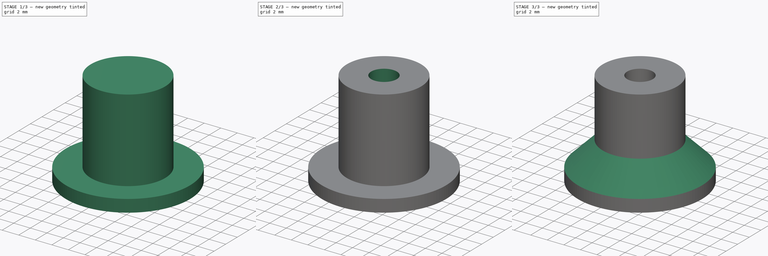
[diagram: build sequence overview — one tinted view per stage of 3, left to right]
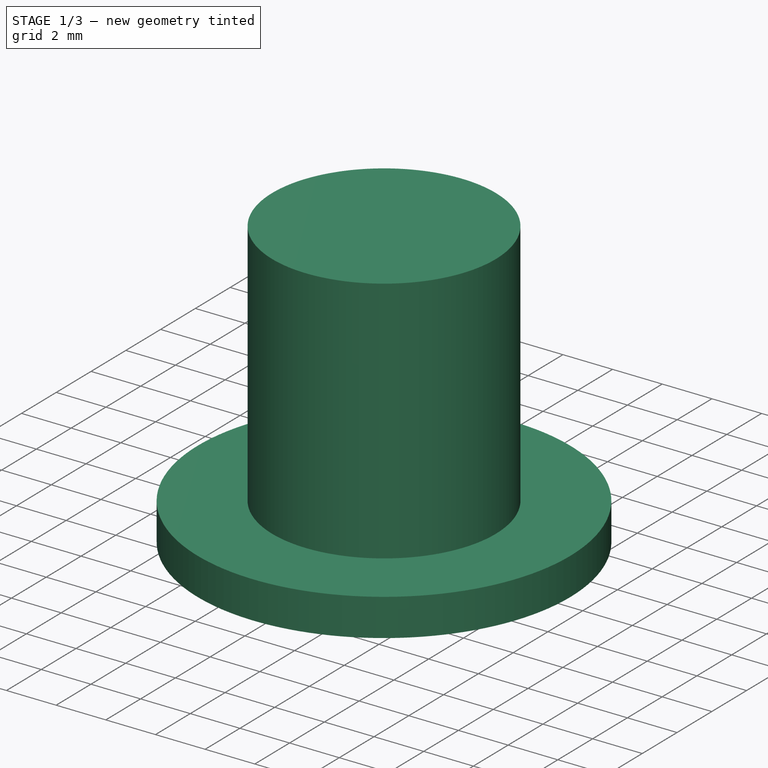
[diagram: stage 1 of 3 — iso view after this stage's code; geometry added in this stage tinted green]
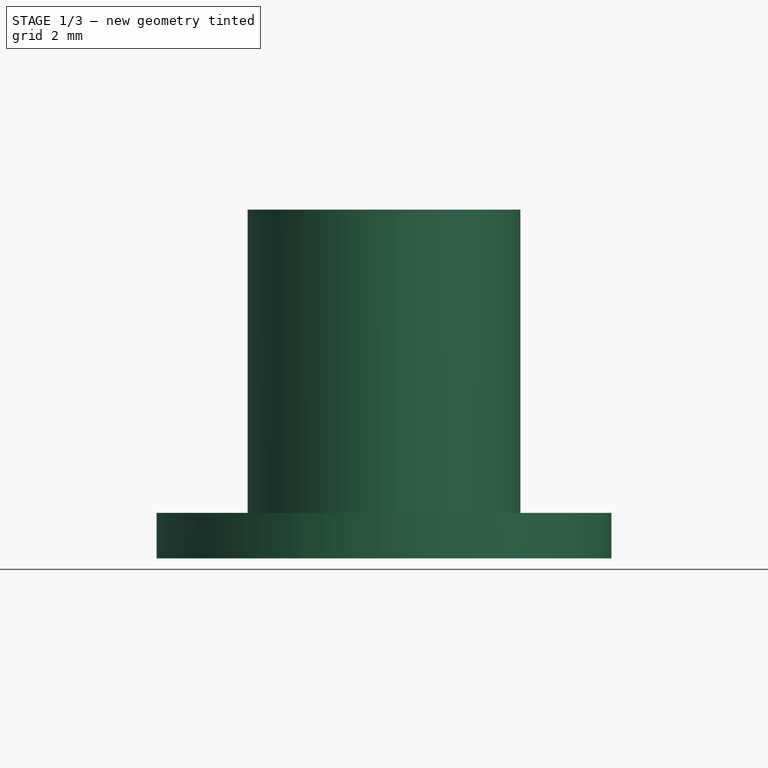
[diagram: stage 1 of 3 — front view after this stage's code; geometry added in this stage tinted green]
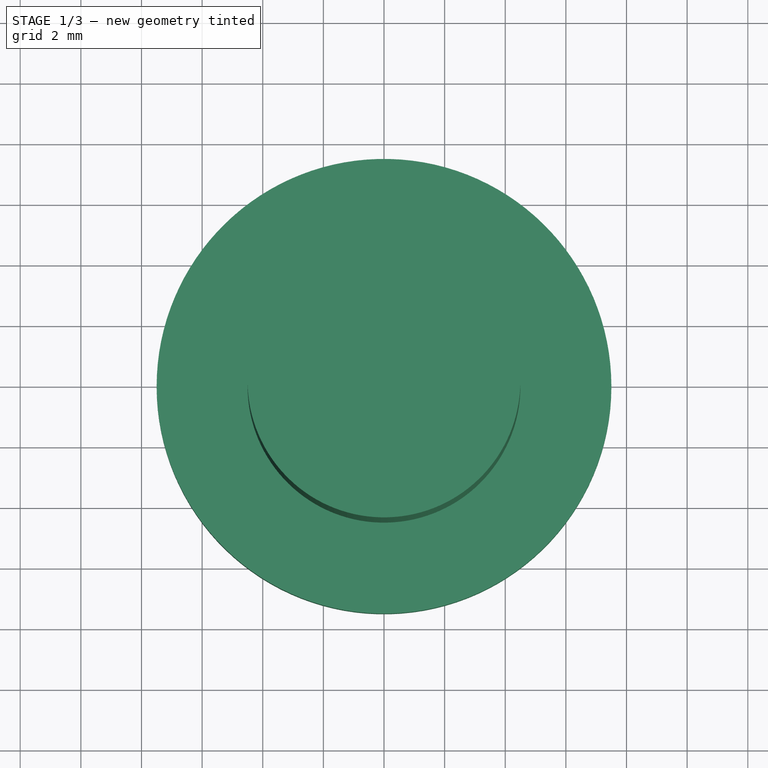
[diagram: stage 1 of 3 — top view after this stage's code; geometry added in this stage tinted green]
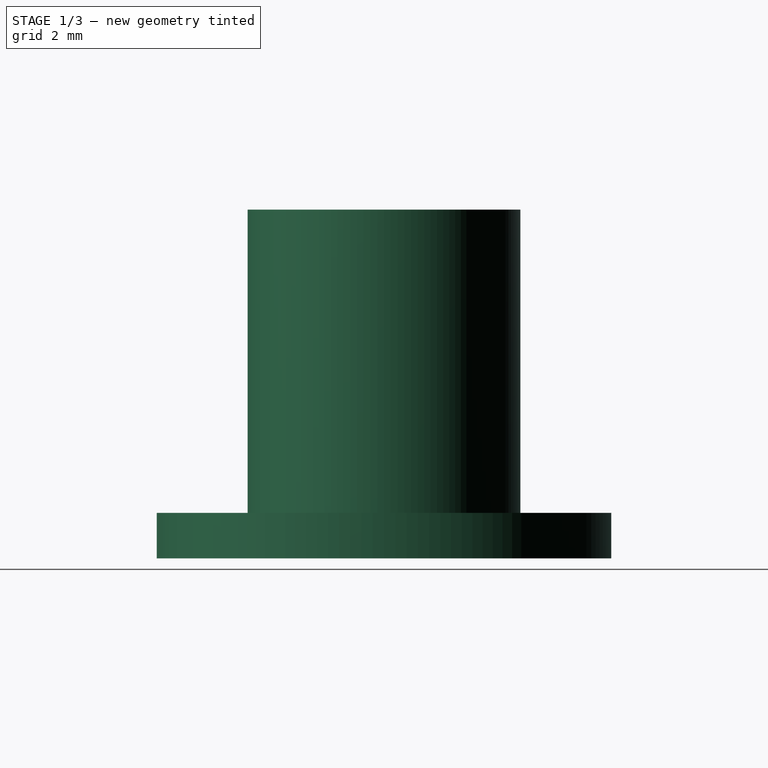
[diagram: stage 1 of 3 — right view after this stage's code; geometry added in this stage tinted green]
FCSTD DOCUMENT  (FreeCAD 0.16R6704 (Git))
Label: PCB Stand-off - v2
License: All rights reserved
LicenseURL: http://en.wikipedia.org/wiki/All_rights_reserved
objects: Sketcher::SketchObject×6, PartDesign::Pad×3, PartDesign::Pocket×3, PartDesign::Chamfer×2
note: 20 computed .brp shape members not serialized (recipe doc carries the construction recipe); baked Part::Feature solids carry a one-line shape summary decoded from their .brp

FEATURE [Sketcher::SketchObject] Sketch
  sketch-geometry (1):
    g0: Circle CenterX=0 CenterY=0 CenterZ=0 NormalX=0 NormalY=0 NormalZ=1 Radius=7.5
  constraints (2):
    c: Coincident(g-1,g0)
    c: Radius(g0) = 7.5
FEATURE [PartDesign::Pad] Pad
  Length = 1.5
  Length2 = 100
  Sketch = -> Sketch
  Type = 0
FEATURE [Sketcher::SketchObject] Sketch001
  Placement = pos=(0,0,1.5) rot=(0,0,1;0rad)
  Support = -> Pad [Face3]
  sketch-geometry (1):
    g0: Circle CenterX=0 CenterY=0 CenterZ=0 NormalX=0 NormalY=0 NormalZ=1 Radius=4.5
  constraints (2):
    c: Coincident(g0,g-1)
    c: Radius(g0) = 4.5
FEATURE [PartDesign::Pad] Pad001
  Length = 10
  Length2 = 100
  Sketch = -> Sketch001
  Type = 0
FEATURE [Sketcher::SketchObject] Sketch002
  Placement = pos=(0,0,0) rot=(1,0,0;3.14159rad)
  Support = -> Pad001 [Face2]
  sketch-geometry (7):
    g0: LineSegment StartX=2.525 StartY=1.45781 StartZ=0 EndX=0 EndY=2.91562 EndZ=0
    g1: LineSegment StartX=0 StartY=2.91562 StartZ=0 EndX=-2.525 EndY=1.45781 EndZ=0
    g2: LineSegment StartX=-2.525 StartY=1.45781 StartZ=0 EndX=-2.525 EndY=-1.45781 EndZ=0
    g3: LineSegment StartX=-2.525 StartY=-1.45781 StartZ=0 EndX=0 EndY=-2.91562 EndZ=0
    g4: LineSegment StartX=0 StartY=-2.91562 StartZ=0 EndX=2.525 EndY=-1.45781 EndZ=0
    g5: LineSegment StartX=2.525 StartY=-1.45781 StartZ=0 EndX=2.525 EndY=1.45781 EndZ=0
    g6: Circle [constr] CenterX=0 CenterY=0 CenterZ=0 NormalX=0 NormalY=0 NormalZ=1 Radius=2.91562
  constraints (16):
    c: Coincident(g0,g1)
    c: Coincident(g1,g2)
    c: Coincident(g2,g3)
    c: Coincident(g3,g4)
    c: Coincident(g4,g5)
    c: Coincident(g5,g0)
    c: Equal(g0, g1-g5) x5
    c: PointOnObject(g0,g6)
    c: PointOnObject(g1,g6)
    c: PointOnObject(g2,g6)
    c: PointOnObject(g3,g6)
    c: PointOnObject(g4,g6)
    c: PointOnObject(g5,g6)
    c: Distance(g1,g3) = 5.05
    c: Coincident(g6,g-1)
    c: Vertical(g5)
FEATURE [PartDesign::Pocket] Pocket
  Length = 6
  Sketch = -> Sketch002
  Type = 0
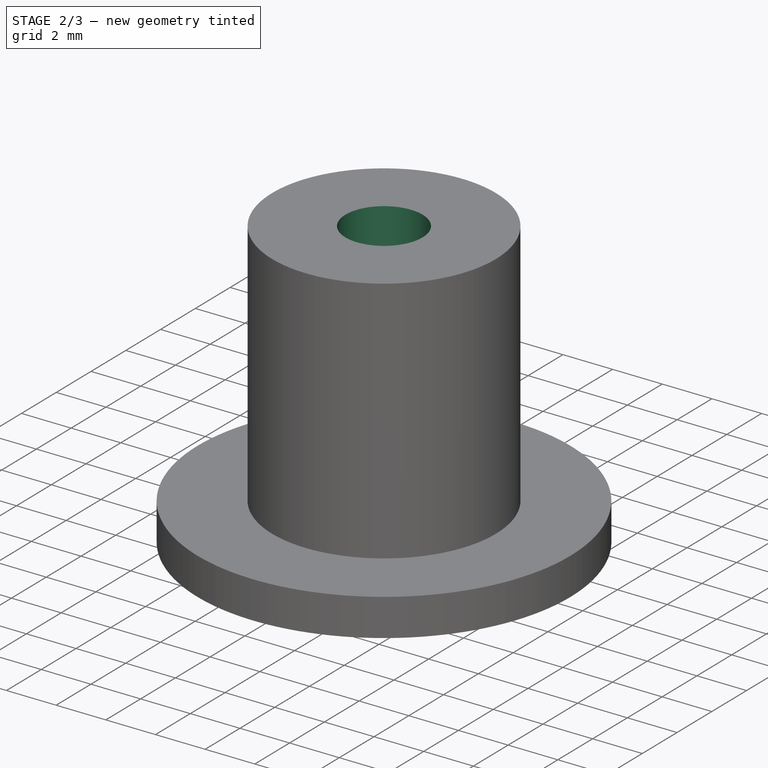
[diagram: stage 2 of 3 — iso view after this stage's code; geometry added in this stage tinted green]
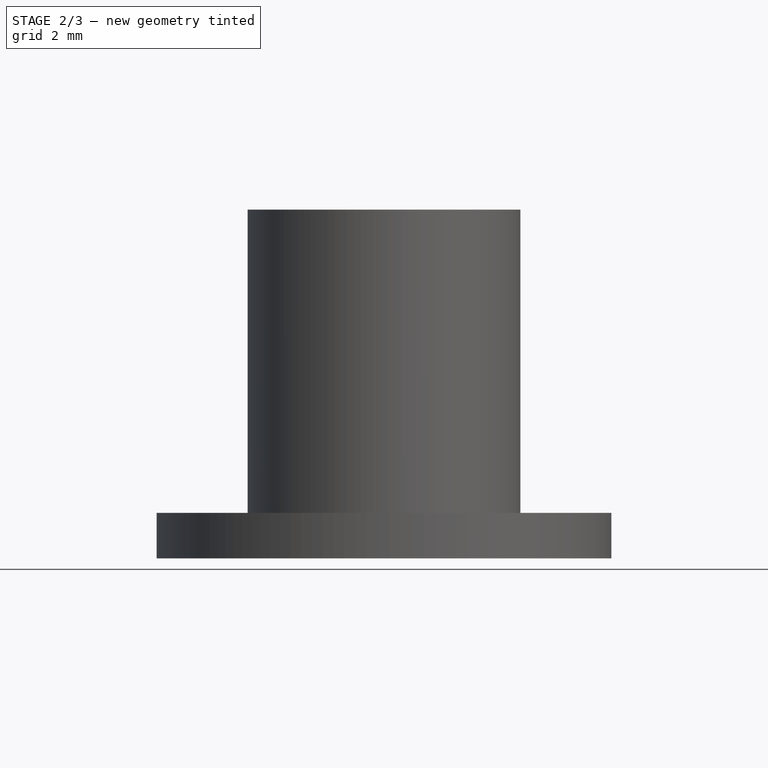
[diagram: stage 2 of 3 — front view after this stage's code; geometry added in this stage tinted green]
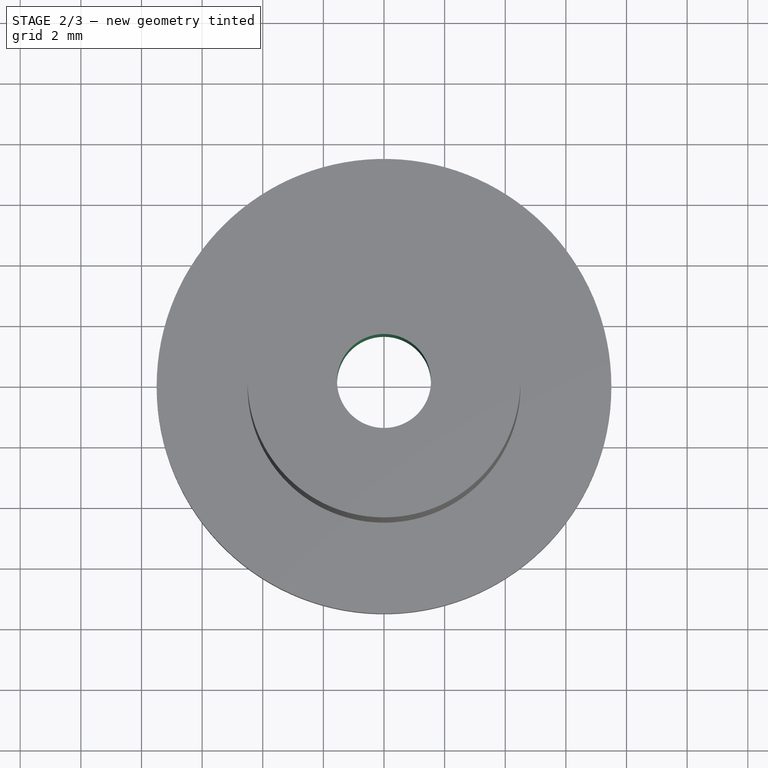
[diagram: stage 2 of 3 — top view after this stage's code; geometry added in this stage tinted green]
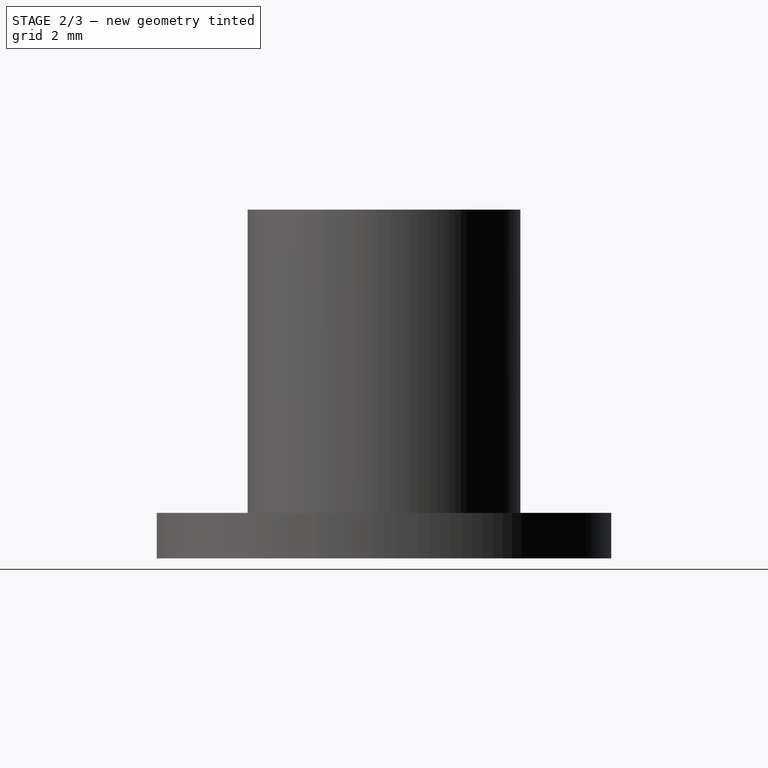
[diagram: stage 2 of 3 — right view after this stage's code; geometry added in this stage tinted green]
FEATURE [Sketcher::SketchObject] Sketch003
  Placement = pos=(0,0,11.5) rot=(0,0,1;0rad)
  Support = -> Pocket [Face12]
  sketch-geometry (1):
    g0: Circle CenterX=0 CenterY=0 CenterZ=0 NormalX=0 NormalY=0 NormalZ=1 Radius=1.55
  constraints (2):
    c: Radius(g0) = 1.55
    c: Coincident(g0,g-1)
FEATURE [PartDesign::Pocket] Pocket001
  Length = 5
  Sketch = -> Sketch003
  Type = 1
FEATURE [Sketcher::SketchObject] Sketch004
  Placement = pos=(0,0,0) rot=(1,0,0;3.14159rad)
  Support = -> Pocket001 [Face2]
  sketch-geometry (7):
    g0: LineSegment StartX=3.025 StartY=1.74648 StartZ=0 EndX=0 EndY=3.49297 EndZ=0
    g1: LineSegment StartX=0 StartY=3.49297 StartZ=0 EndX=-3.025 EndY=1.74648 EndZ=0
    g2: LineSegment StartX=-3.025 StartY=1.74648 StartZ=0 EndX=-3.025 EndY=-1.74648 EndZ=0
    g3: LineSegment StartX=-3.025 StartY=-1.74648 StartZ=0 EndX=0 EndY=-3.49297 EndZ=0
    g4: LineSegment StartX=0 StartY=-3.49297 StartZ=0 EndX=3.025 EndY=-1.74648 EndZ=0
    g5: LineSegment StartX=3.025 StartY=-1.74648 StartZ=0 EndX=3.025 EndY=1.74648 EndZ=0
    g6: Circle [constr] CenterX=0 CenterY=0 CenterZ=0 NormalX=0 NormalY=0 NormalZ=1 Radius=3.49297
  constraints (16):
    c: Coincident(g0,g1)
    c: Coincident(g1,g2)
    c: Coincident(g2,g3)
    c: Coincident(g3,g4)
    c: Coincident(g4,g5)
    c: Coincident(g5,g0)
    c: Equal(g0, g1-g5) x5
    c: PointOnObject(g0,g6)
    c: PointOnObject(g1,g6)
    c: PointOnObject(g2,g6)
    c: PointOnObject(g3,g6)
    c: PointOnObject(g4,g6)
    c: PointOnObject(g5,g6)
    c: Coincident(g6,g-1)
    c: Distance(g2,g4) = 6.05
    c: Vertical(g5)
FEATURE [PartDesign::Pocket] Pocket002
  Length = 4
  Sketch = -> Sketch004
  Type = 0
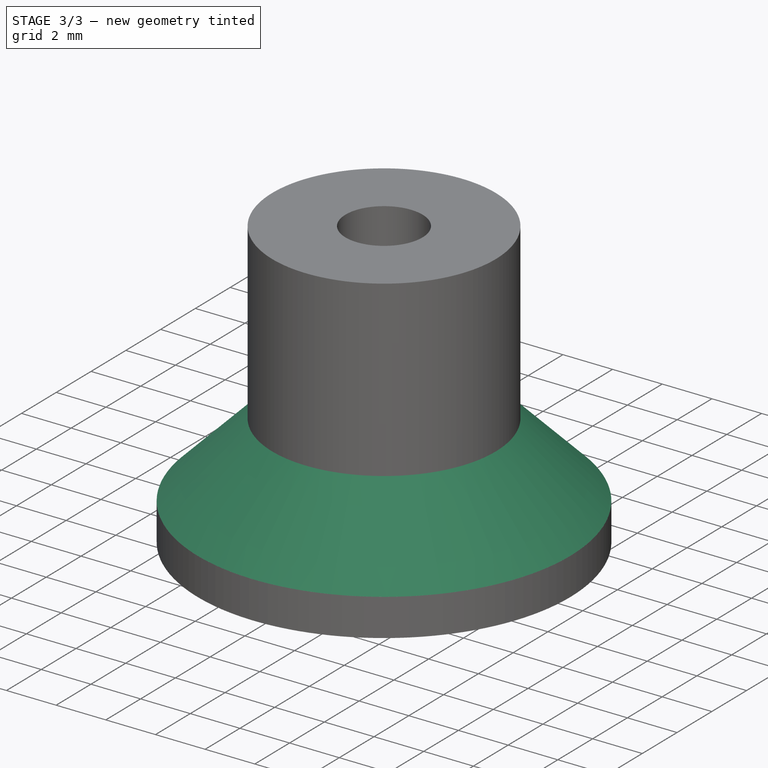
[diagram: stage 3 of 3 — iso view after this stage's code; geometry added in this stage tinted green]
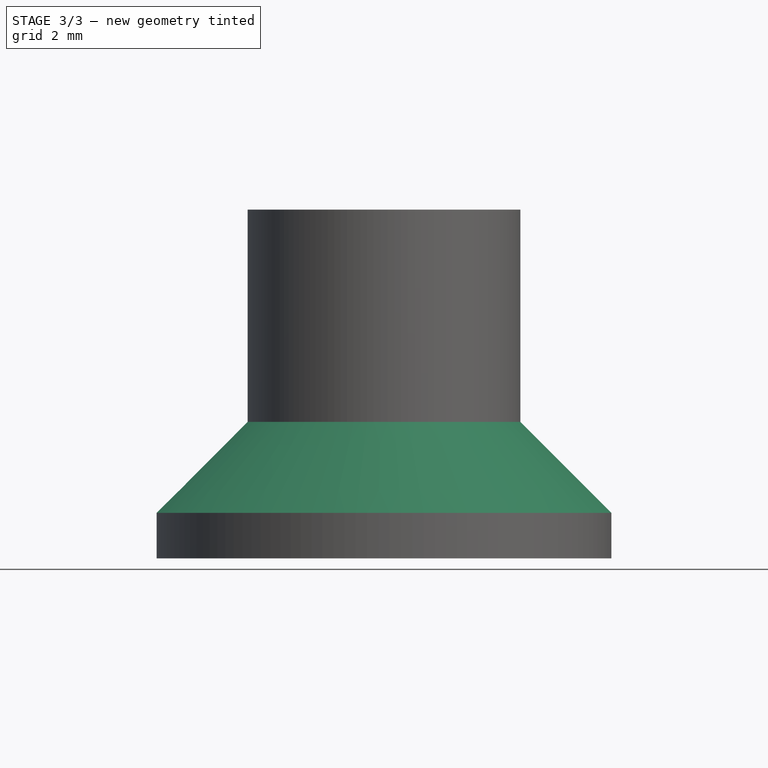
[diagram: stage 3 of 3 — front view after this stage's code; geometry added in this stage tinted green]
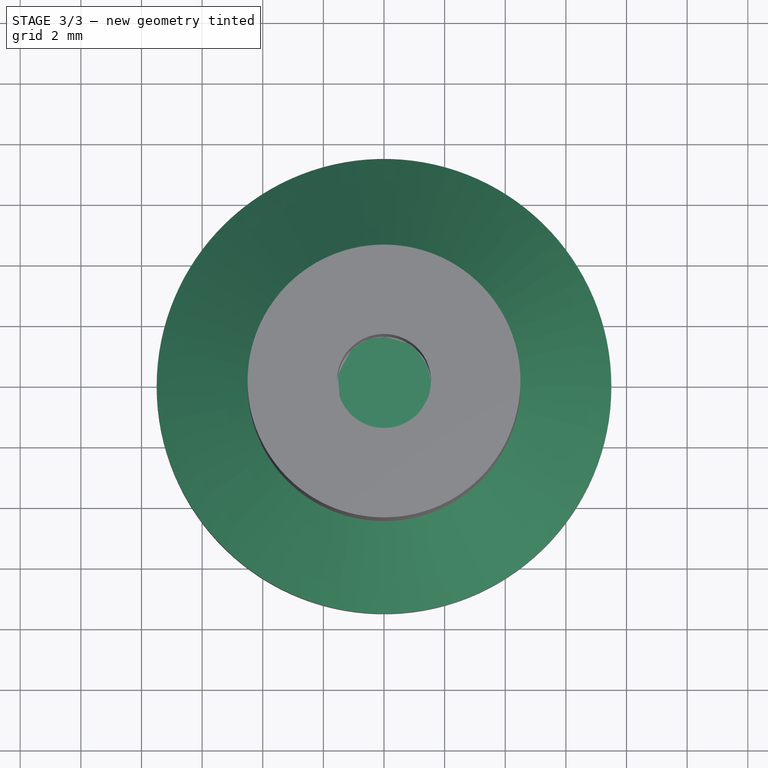
[diagram: stage 3 of 3 — top view after this stage's code; geometry added in this stage tinted green]
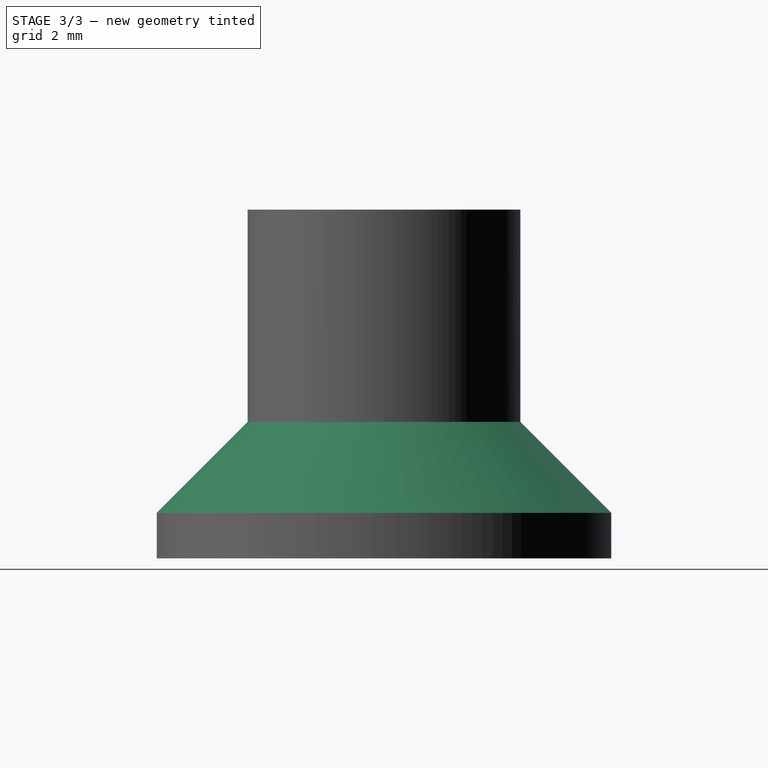
[diagram: stage 3 of 3 — right view after this stage's code; geometry added in this stage tinted green]
FEATURE [PartDesign::Chamfer] Chamfer  label="PCB Stand-off - v2"
  Base = -> Pocket002 [Edge10]
  Size = 2.999
FEATURE [Sketcher::SketchObject] Sketch005
  Placement = pos=(0,0,6) rot=(1,0,0;3.14159rad)
  Support = -> Chamfer [Face15]
  sketch-geometry (1):
    g0: Circle CenterX=0 CenterY=0 CenterZ=0 NormalX=0 NormalY=0 NormalZ=1 Radius=1.55
  constraints (2):
    c: Coincident(g0,g-1)
    c: Radius(g0) = 1.55
FEATURE [PartDesign::Pad] Pad002  label="Printable"
  Length = 0.3
  Length2 = 100
  Reversed = true
  Sketch = -> Sketch005
  Type = 0
FEATURE [PartDesign::Chamfer] Chamfer001  label="Printable001"
  Base = -> Pad002 [Edge25,Edge27,Edge23,Edge17,Edge19,Edge21]
  Size = 0.495
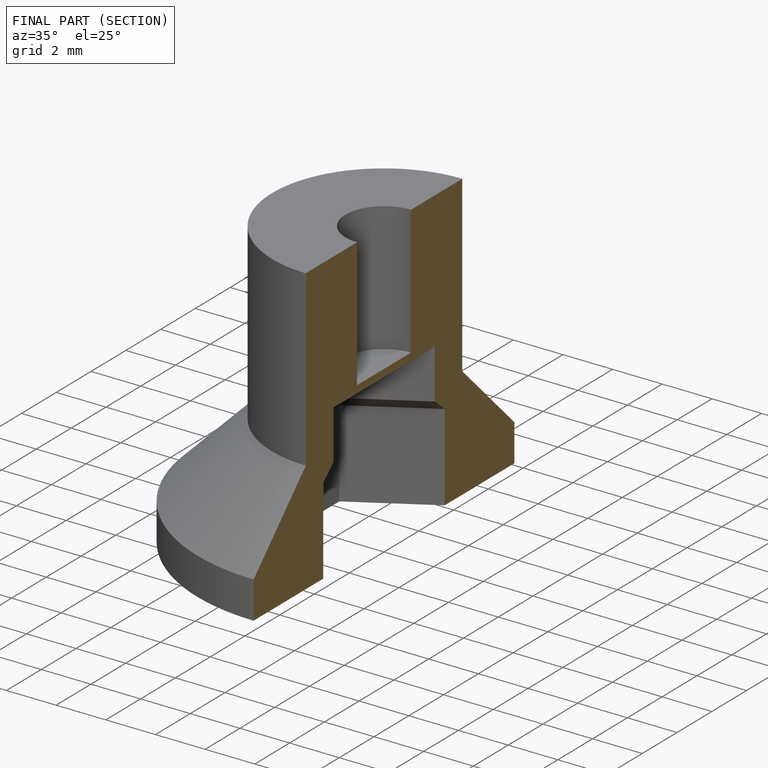
[diagram: finished part — half-section view (interior)]
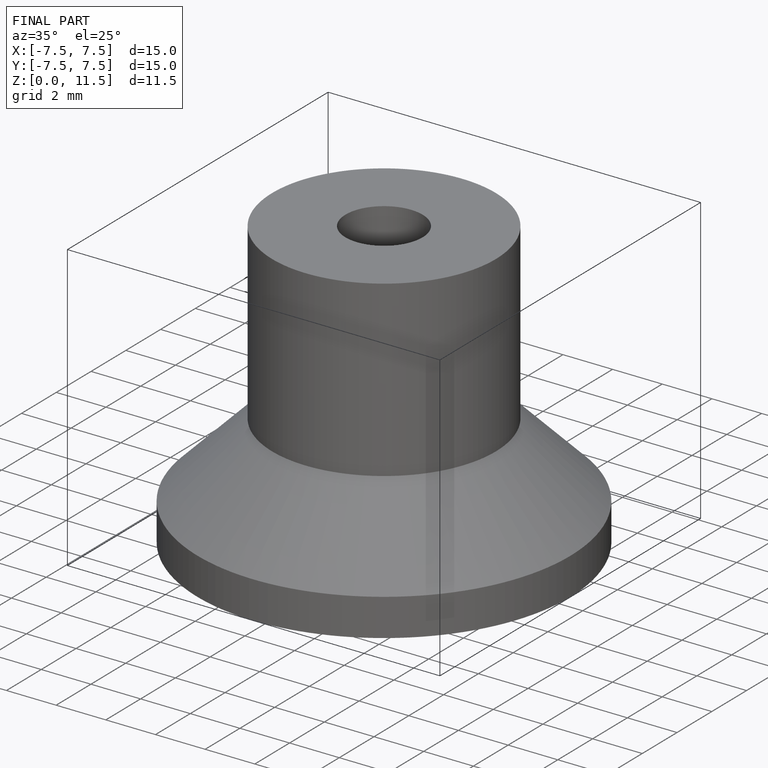
[diagram: finished part — iso view with bounding-box wireframe]
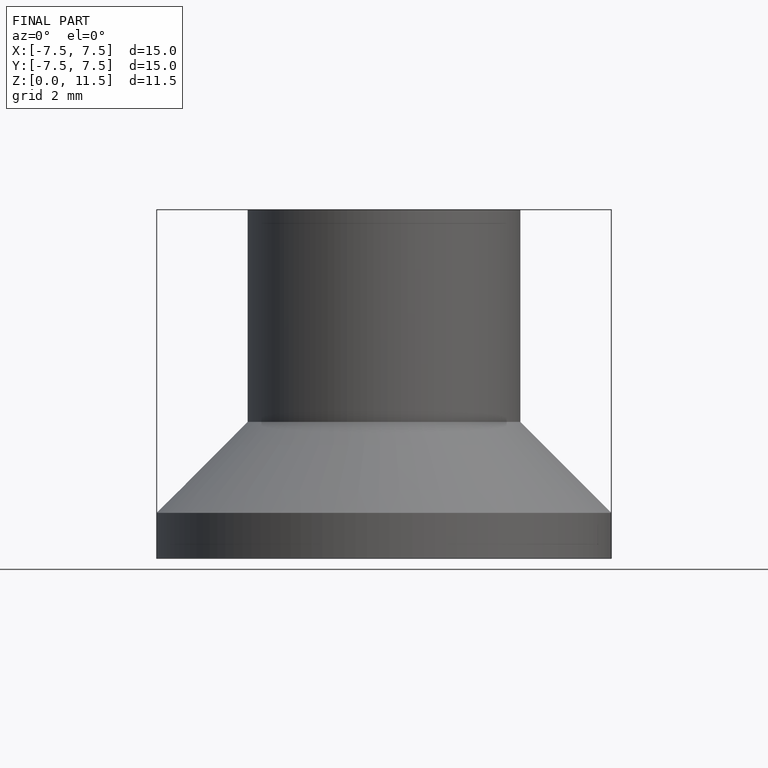
[diagram: finished part — front view with bounding-box wireframe]
